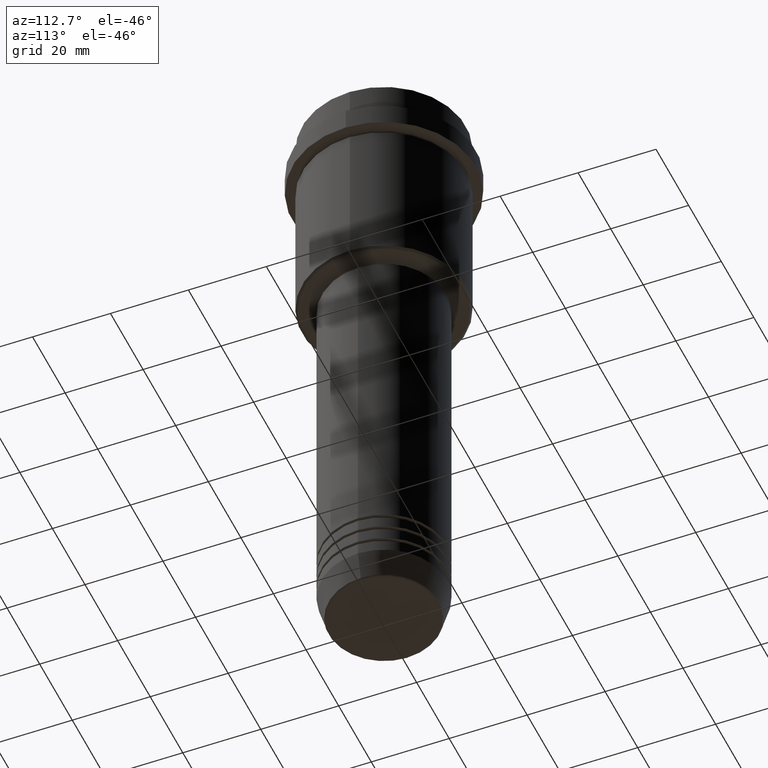
[diagram: clean part render]
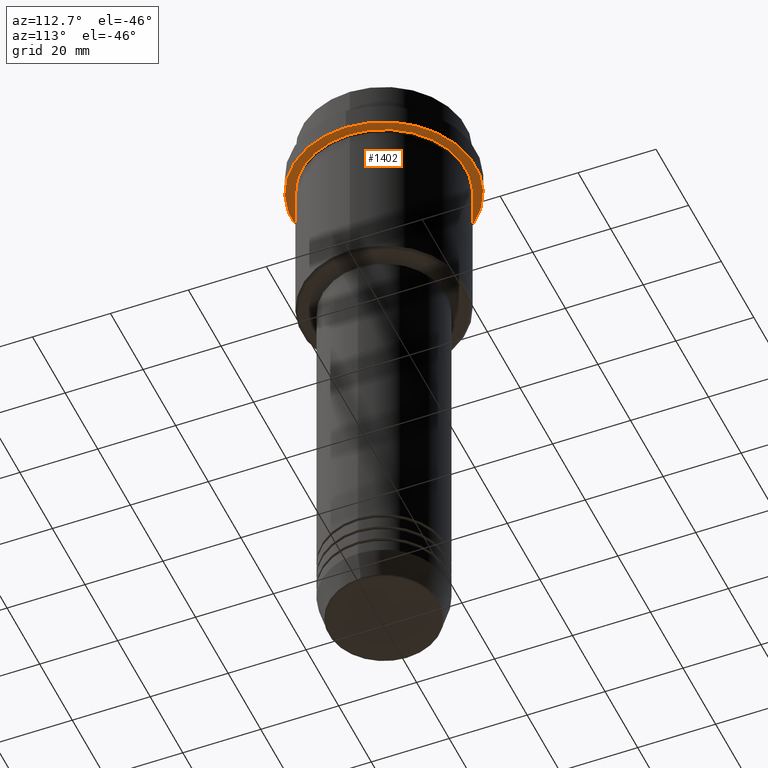
[diagram: same view with one face highlighted and labeled with its STEP entity id]
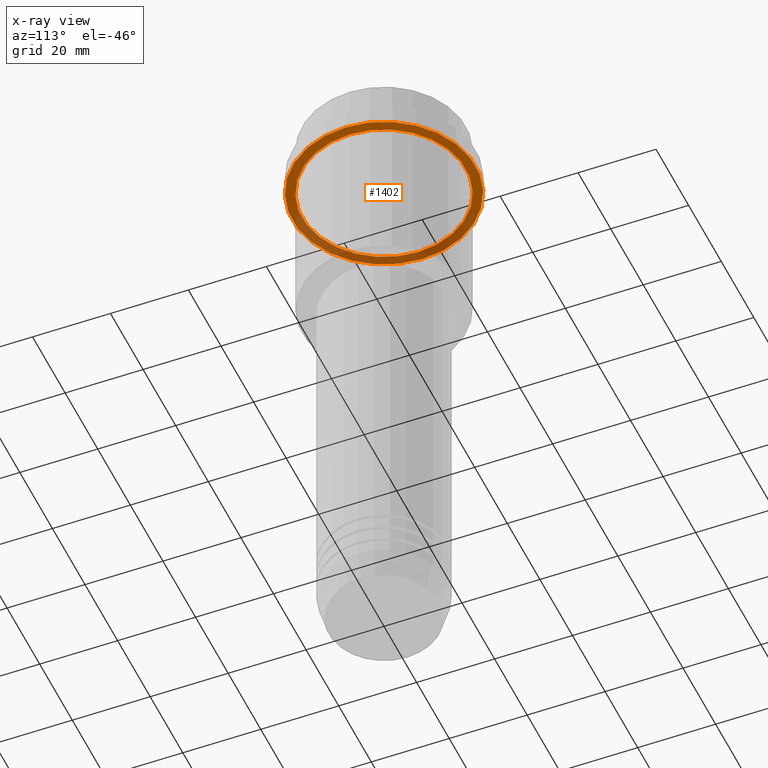
[diagram: x-ray of the same camera — body ghosted, the highlighted face saturated]
A machine part, auxiliary view. The second image highlights one B-rep face of the part: STEP entity #1402.
The next image is the same camera in x-ray: the body ghosted, the highlighted face saturated — about 38% of this face is hidden behind the body in this view.
In plain terms, the highlighted planar face has unit normal (0, 0, -1).
Its self-contained STEP definition (entity closure, byte-faithful):
#102 = CARTESIAN_POINT ( 'NONE',  ( 0.000000000000000000, 0.000000000000000000, -15.00000000000000178 ) ) ;
#145 = DIRECTION ( 'NONE',  ( 1.000000000000000000, 0.000000000000000000, 0.000000000000000000 ) ) ;
#167 = DIRECTION ( 'NONE',  ( -0.000000000000000000, -0.000000000000000000, 1.000000000000000000 ) ) ;
#194 = PLANE ( 'NONE',  #1014 ) ;
#286 = ORIENTED_EDGE ( 'NONE', *, *, #351, .T. ) ;
#299 = ORIENTED_EDGE ( 'NONE', *, *, #1275, .F. ) ;
#323 = DIRECTION ( 'NONE',  ( -1.000000000000000000, 0.000000000000000000, -0.000000000000000000 ) ) ;
#328 = FACE_BOUND ( 'NONE', #908, .T. ) ;
#351 = EDGE_CURVE ( 'NONE', #847, #1271, #494, .T. ) ;
#430 = FACE_OUTER_BOUND ( 'NONE', #751, .T. ) ;
#447 = AXIS2_PLACEMENT_3D ( 'NONE', #1222, #1109, #482 ) ;
#482 = DIRECTION ( 'NONE',  ( -1.000000000000000000, 0.000000000000000000, 0.000000000000000000 ) ) ;
#490 = CARTESIAN_POINT ( 'NONE',  ( 20.99999999999999289, 2.571758278209440872E-15, -15.00000000000000178 ) ) ;
#494 = CIRCLE ( 'NONE', #755, 20.99999999999999289 ) ;
#624 = CARTESIAN_POINT ( 'NONE',  ( 23.50000000000000355, 0.000000000000000000, -15.00000000000000000 ) ) ;
#708 = EDGE_CURVE ( 'NONE', #1271, #847, #1241, .T. ) ;
#721 = AXIS2_PLACEMENT_3D ( 'NONE', #1203, #886, #145 ) ;
#751 = EDGE_LOOP ( 'NONE', ( #990, #299 ) ) ;
#753 = DIRECTION ( 'NONE',  ( -0.000000000000000000, -0.000000000000000000, 1.000000000000000000 ) ) ;
#755 = AXIS2_PLACEMENT_3D ( 'NONE', #102, #753, #1179 ) ;
#821 = VERTEX_POINT ( 'NONE', #935 ) ;
#827 = CARTESIAN_POINT ( 'NONE',  ( -20.99999999999999289, 0.000000000000000000, -15.00000000000000178 ) ) ;
#847 = VERTEX_POINT ( 'NONE', #490 ) ;
#851 = VERTEX_POINT ( 'NONE', #624 ) ;
#886 = DIRECTION ( 'NONE',  ( -0.000000000000000000, -0.000000000000000000, 1.000000000000000000 ) ) ;
#908 = EDGE_LOOP ( 'NONE', ( #1358, #286 ) ) ;
#935 = CARTESIAN_POINT ( 'NONE',  ( -23.50000000000000711, 2.877919977996281109E-15, -15.00000000000000000 ) ) ;
#938 = DIRECTION ( 'NONE',  ( 1.000000000000000000, 0.000000000000000000, 0.000000000000000000 ) ) ;
#990 = ORIENTED_EDGE ( 'NONE', *, *, #1130, .F. ) ;
#1014 = AXIS2_PLACEMENT_3D ( 'NONE', #1178, #1397, #323 ) ;
#1103 = CIRCLE ( 'NONE', #721, 23.50000000000000355 ) ;
#1109 = DIRECTION ( 'NONE',  ( -0.000000000000000000, -0.000000000000000000, 1.000000000000000000 ) ) ;
#1130 = EDGE_CURVE ( 'NONE', #851, #821, #1103, .T. ) ;
#1151 = CARTESIAN_POINT ( 'NONE',  ( 0.000000000000000000, 0.000000000000000000, -15.00000000000000000 ) ) ;
#1178 = CARTESIAN_POINT ( 'NONE',  ( 0.000000000000000000, 23.50000000000000355, -15.00000000000000178 ) ) ;
#1179 = DIRECTION ( 'NONE',  ( -1.000000000000000000, 0.000000000000000000, 0.000000000000000000 ) ) ;
#1203 = CARTESIAN_POINT ( 'NONE',  ( 0.000000000000000000, 0.000000000000000000, -15.00000000000000000 ) ) ;
#1219 = AXIS2_PLACEMENT_3D ( 'NONE', #1151, #167, #938 ) ;
#1222 = CARTESIAN_POINT ( 'NONE',  ( 0.000000000000000000, 0.000000000000000000, -15.00000000000000178 ) ) ;
#1241 = CIRCLE ( 'NONE', #447, 20.99999999999999289 ) ;
#1271 = VERTEX_POINT ( 'NONE', #827 ) ;
#1275 = EDGE_CURVE ( 'NONE', #821, #851, #1288, .T. ) ;
#1288 = CIRCLE ( 'NONE', #1219, 23.50000000000000355 ) ;
#1358 = ORIENTED_EDGE ( 'NONE', *, *, #708, .T. ) ;
#1397 = DIRECTION ( 'NONE',  ( 0.000000000000000000, 0.000000000000000000, -1.000000000000000000 ) ) ;
#1402 = ADVANCED_FACE ( 'NONE', ( #328, #430 ), #194, .T. ) ;